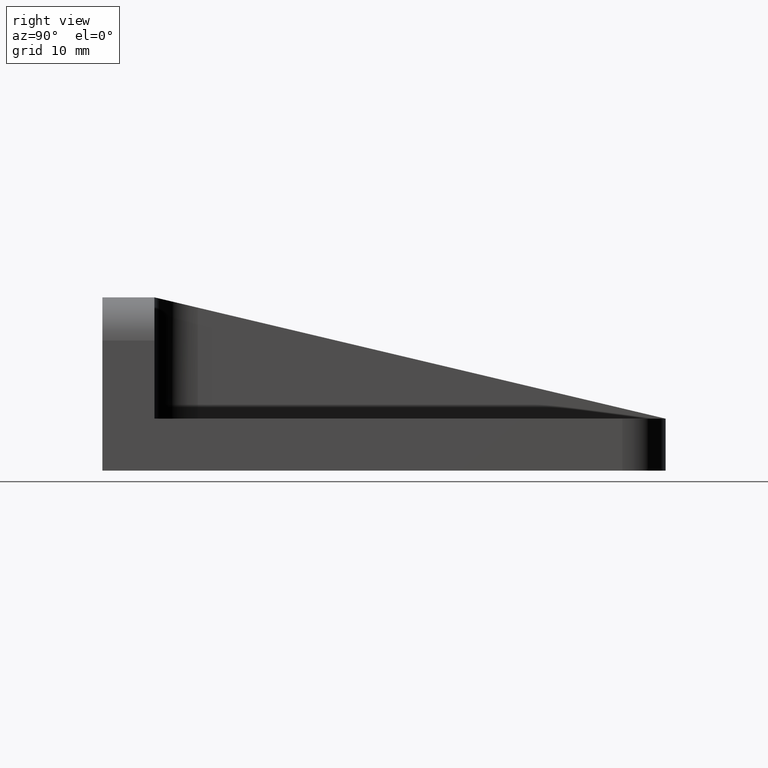
[diagram: clean part render]
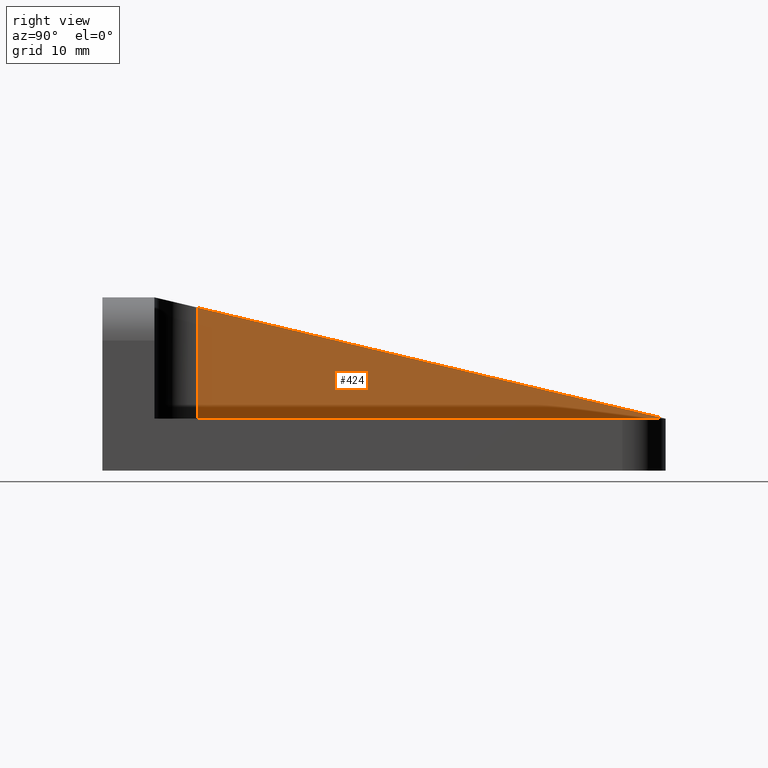
[diagram: same view with one face highlighted and labeled with its STEP entity id]
A machine part, right view. The second image highlights one B-rep face of the part: STEP entity #424.
In plain terms, the highlighted planar face has unit normal (-1, -0, 0).
Its self-contained STEP definition (entity closure, byte-faithful):
#37 = PLANE ( 'NONE',  #620 ) ;
#48 = DIRECTION ( 'NONE',  ( 1.470104640658311186E-17, -1.000000000000000000, 0.0000000000000000000 ) ) ;
#77 = VERTEX_POINT ( 'NONE', #853 ) ;
#102 = VERTEX_POINT ( 'NONE', #922 ) ;
#120 = FACE_OUTER_BOUND ( 'NONE', #682, .T. ) ;
#121 = DIRECTION ( 'NONE',  ( -1.430386640407384986E-17, 0.9729828754005290792, -0.2308772924679221294 ) ) ;
#125 = DIRECTION ( 'NONE',  ( -1.000000000000000000, -1.470104640658311186E-17, 0.0000000000000000000 ) ) ;
#221 = LINE ( 'NONE', #611, #868 ) ;
#280 = EDGE_CURVE ( 'NONE', #102, #77, #1079, .T. ) ;
#314 = CARTESIAN_POINT ( 'NONE',  ( 3.000000000000007105, 5.999999999999998224, 6.000000000000005329 ) ) ;
#424 = ADVANCED_FACE ( 'NONE', ( #120 ), #37, .F. ) ;
#492 = LINE ( 'NONE', #570, #1200 ) ;
#494 = DIRECTION ( 'NONE',  ( -1.470104640658311186E-17, 1.000000000000000000, 0.0000000000000000000 ) ) ;
#545 = CARTESIAN_POINT ( 'NONE',  ( 3.000000000000007105, 10.99999999999998934, 18.81355932203389969 ) ) ;
#563 = DIRECTION ( 'NONE',  ( -0.0000000000000000000, -0.0000000000000000000, -1.000000000000000000 ) ) ;
#570 = CARTESIAN_POINT ( 'NONE',  ( 3.000000000000007105, 10.99999999999999822, 6.000000000000005329 ) ) ;
#606 = EDGE_CURVE ( 'NONE', #792, #102, #492, .T. ) ;
#611 = CARTESIAN_POINT ( 'NONE',  ( 3.000000000000006217, 65.00000000000000000, 6.000000000000000000 ) ) ;
#620 = AXIS2_PLACEMENT_3D ( 'NONE', #627, #125, #48 ) ;
#627 = CARTESIAN_POINT ( 'NONE',  ( 3.000000000000007105, 5.999999999999998224, -62.96824596572466248 ) ) ;
#672 = EDGE_CURVE ( 'NONE', #792, #77, #221, .T. ) ;
#682 = EDGE_LOOP ( 'NONE', ( #1145, #870, #909 ) ) ;
#792 = VERTEX_POINT ( 'NONE', #545 ) ;
#853 = CARTESIAN_POINT ( 'NONE',  ( 3.000000000000006217, 65.00000000000000000, 6.000000000000005329 ) ) ;
#866 = VECTOR ( 'NONE', #494, 1000.000000000000000 ) ;
#868 = VECTOR ( 'NONE', #121, 1000.000000000000114 ) ;
#870 = ORIENTED_EDGE ( 'NONE', *, *, #606, .T. ) ;
#909 = ORIENTED_EDGE ( 'NONE', *, *, #280, .T. ) ;
#922 = CARTESIAN_POINT ( 'NONE',  ( 3.000000000000007105, 10.99999999999999822, 6.000000000000005329 ) ) ;
#1079 = LINE ( 'NONE', #314, #866 ) ;
#1145 = ORIENTED_EDGE ( 'NONE', *, *, #672, .F. ) ;
#1200 = VECTOR ( 'NONE', #563, 1000.000000000000000 ) ;